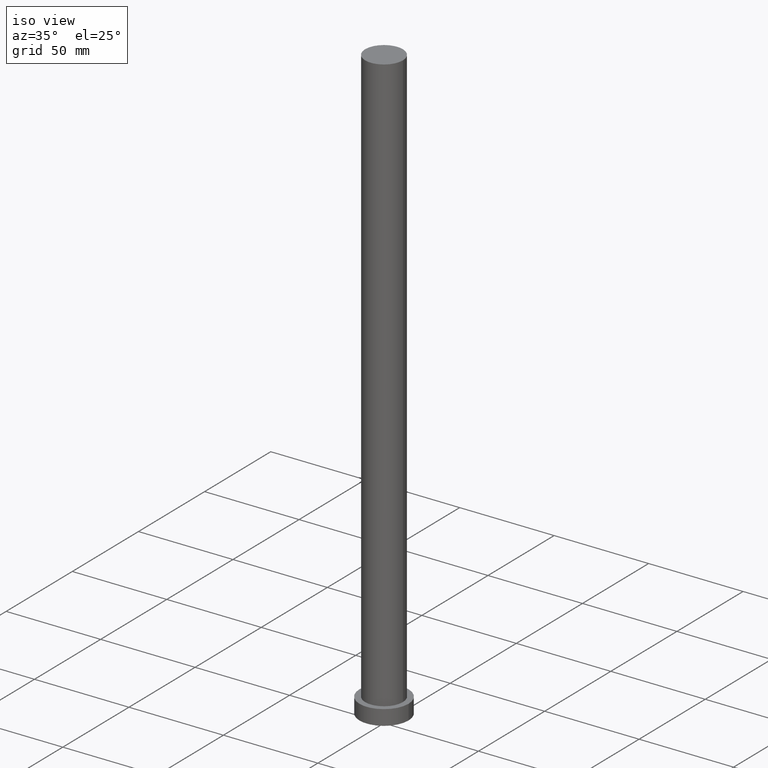
[diagram: clean part render]
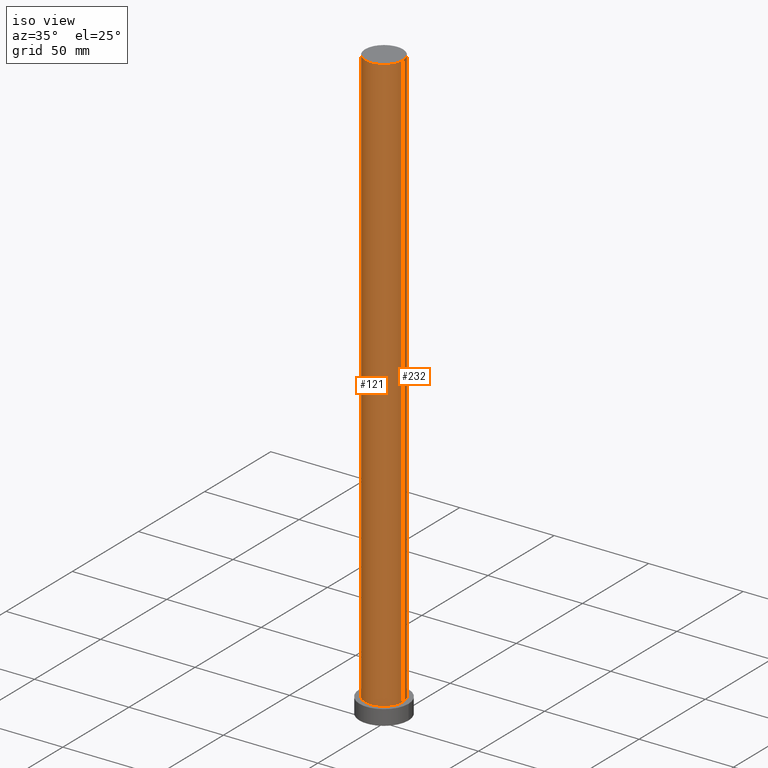
[diagram: same view with one multi-face feature highlighted, each face labeled with its STEP entity id]
A machine part, iso view. The highlighted faces form ONE feature: a constant-radius fillet chain: 2 tangent blend faces with common blend radius 10 mm. The faces share edges in the B-rep.
Their STEP definitions:
[1] entity #121 (Cylinder):
#8 = ORIENTED_EDGE ( 'NONE', *, *, #32, .F. ) ;
#12 = CARTESIAN_POINT ( 'NONE',  ( 10.00000000000000000, 1.224646799147353256E-15, 8.000000000000000000 ) ) ;
#13 = CARTESIAN_POINT ( 'NONE',  ( -10.00000000000000000, 0.000000000000000000, 8.000000000000000000 ) ) ;
#15 = DIRECTION ( 'NONE',  ( -0.000000000000000000, -0.000000000000000000, -1.000000000000000000 ) ) ;
#17 = CIRCLE ( 'NONE', #174, 10.00000000000000000 ) ;
#18 = CYLINDRICAL_SURFACE ( 'NONE', #88, 10.00000000000000000 ) ;
#21 = CARTESIAN_POINT ( 'NONE',  ( 0.000000000000000000, 0.000000000000000000, 8.000000000000000000 ) ) ;
#32 = EDGE_CURVE ( 'NONE', #42, #40, #17, .T. ) ;
#40 = VERTEX_POINT ( 'NONE', #148 ) ;
#42 = VERTEX_POINT ( 'NONE', #79 ) ;
#60 = CARTESIAN_POINT ( 'NONE',  ( 10.00000000000000000, 1.224646799147353256E-15, 315.0000000000000000 ) ) ;
#63 = ORIENTED_EDGE ( 'NONE', *, *, #151, .F. ) ;
#65 = DIRECTION ( 'NONE',  ( 0.000000000000000000, 0.000000000000000000, 1.000000000000000000 ) ) ;
#68 = EDGE_CURVE ( 'NONE', #227, #177, #220, .T. ) ;
#79 = CARTESIAN_POINT ( 'NONE',  ( -10.00000000000000000, 0.000000000000000000, 315.0000000000000000 ) ) ;
#88 = AXIS2_PLACEMENT_3D ( 'NONE', #137, #178, #154 ) ;
#94 = LINE ( 'NONE', #60, #197 ) ;
#95 = DIRECTION ( 'NONE',  ( 1.000000000000000000, 0.000000000000000000, 0.000000000000000000 ) ) ;
#108 = CARTESIAN_POINT ( 'NONE',  ( -10.00000000000000000, 0.000000000000000000, 315.0000000000000000 ) ) ;
#114 = DIRECTION ( 'NONE',  ( -0.000000000000000000, -0.000000000000000000, -1.000000000000000000 ) ) ;
#121 = ADVANCED_FACE ( 'NONE', ( #180 ), #18, .T. ) ;
#123 = VECTOR ( 'NONE', #15, 1000.000000000000000 ) ;
#137 = CARTESIAN_POINT ( 'NONE',  ( 0.000000000000000000, 0.000000000000000000, 315.0000000000000000 ) ) ;
#148 = CARTESIAN_POINT ( 'NONE',  ( 10.00000000000000000, 1.224646799147353256E-15, 315.0000000000000000 ) ) ;
#151 = EDGE_CURVE ( 'NONE', #40, #177, #94, .T. ) ;
#154 = DIRECTION ( 'NONE',  ( -1.000000000000000000, 0.000000000000000000, 0.000000000000000000 ) ) ;
#165 = CARTESIAN_POINT ( 'NONE',  ( 0.000000000000000000, 0.000000000000000000, 315.0000000000000000 ) ) ;
#174 = AXIS2_PLACEMENT_3D ( 'NONE', #165, #247, #188 ) ;
#177 = VERTEX_POINT ( 'NONE', #12 ) ;
#178 = DIRECTION ( 'NONE',  ( -0.000000000000000000, -0.000000000000000000, -1.000000000000000000 ) ) ;
#180 = FACE_OUTER_BOUND ( 'NONE', #209, .T. ) ;
#188 = DIRECTION ( 'NONE',  ( 1.000000000000000000, 0.000000000000000000, 0.000000000000000000 ) ) ;
#190 = EDGE_CURVE ( 'NONE', #42, #227, #194, .T. ) ;
#194 = LINE ( 'NONE', #108, #123 ) ;
#197 = VECTOR ( 'NONE', #114, 1000.000000000000000 ) ;
#202 = AXIS2_PLACEMENT_3D ( 'NONE', #21, #65, #95 ) ;
#209 = EDGE_LOOP ( 'NONE', ( #63, #8, #226, #251 ) ) ;
#220 = CIRCLE ( 'NONE', #202, 10.00000000000000000 ) ;
#226 = ORIENTED_EDGE ( 'NONE', *, *, #190, .T. ) ;
#227 = VERTEX_POINT ( 'NONE', #13 ) ;
#247 = DIRECTION ( 'NONE',  ( 0.000000000000000000, 0.000000000000000000, 1.000000000000000000 ) ) ;
#251 = ORIENTED_EDGE ( 'NONE', *, *, #68, .T. ) ;
[2] entity #232 (Cylinder):
#6 = AXIS2_PLACEMENT_3D ( 'NONE', #205, #218, #31 ) ;
#12 = CARTESIAN_POINT ( 'NONE',  ( 10.00000000000000000, 1.224646799147353256E-15, 8.000000000000000000 ) ) ;
#13 = CARTESIAN_POINT ( 'NONE',  ( -10.00000000000000000, 0.000000000000000000, 8.000000000000000000 ) ) ;
#15 = DIRECTION ( 'NONE',  ( -0.000000000000000000, -0.000000000000000000, -1.000000000000000000 ) ) ;
#31 = DIRECTION ( 'NONE',  ( 1.000000000000000000, 0.000000000000000000, 0.000000000000000000 ) ) ;
#40 = VERTEX_POINT ( 'NONE', #148 ) ;
#41 = DIRECTION ( 'NONE',  ( 0.000000000000000000, 0.000000000000000000, 1.000000000000000000 ) ) ;
#42 = VERTEX_POINT ( 'NONE', #79 ) ;
#44 = ORIENTED_EDGE ( 'NONE', *, *, #151, .T. ) ;
#50 = ORIENTED_EDGE ( 'NONE', *, *, #190, .F. ) ;
#52 = CARTESIAN_POINT ( 'NONE',  ( 0.000000000000000000, 0.000000000000000000, 315.0000000000000000 ) ) ;
#60 = CARTESIAN_POINT ( 'NONE',  ( 10.00000000000000000, 1.224646799147353256E-15, 315.0000000000000000 ) ) ;
#61 = DIRECTION ( 'NONE',  ( 1.000000000000000000, 0.000000000000000000, 0.000000000000000000 ) ) ;
#71 = DIRECTION ( 'NONE',  ( -1.000000000000000000, 0.000000000000000000, 0.000000000000000000 ) ) ;
#79 = CARTESIAN_POINT ( 'NONE',  ( -10.00000000000000000, 0.000000000000000000, 315.0000000000000000 ) ) ;
#89 = FACE_OUTER_BOUND ( 'NONE', #245, .T. ) ;
#94 = LINE ( 'NONE', #60, #197 ) ;
#108 = CARTESIAN_POINT ( 'NONE',  ( -10.00000000000000000, 0.000000000000000000, 315.0000000000000000 ) ) ;
#114 = DIRECTION ( 'NONE',  ( -0.000000000000000000, -0.000000000000000000, -1.000000000000000000 ) ) ;
#123 = VECTOR ( 'NONE', #15, 1000.000000000000000 ) ;
#142 = CIRCLE ( 'NONE', #173, 10.00000000000000000 ) ;
#148 = CARTESIAN_POINT ( 'NONE',  ( 10.00000000000000000, 1.224646799147353256E-15, 315.0000000000000000 ) ) ;
#151 = EDGE_CURVE ( 'NONE', #40, #177, #94, .T. ) ;
#158 = EDGE_CURVE ( 'NONE', #177, #227, #192, .T. ) ;
#171 = CYLINDRICAL_SURFACE ( 'NONE', #252, 10.00000000000000000 ) ;
#173 = AXIS2_PLACEMENT_3D ( 'NONE', #200, #41, #61 ) ;
#177 = VERTEX_POINT ( 'NONE', #12 ) ;
#190 = EDGE_CURVE ( 'NONE', #42, #227, #194, .T. ) ;
#192 = CIRCLE ( 'NONE', #6, 10.00000000000000000 ) ;
#194 = LINE ( 'NONE', #108, #123 ) ;
#197 = VECTOR ( 'NONE', #114, 1000.000000000000000 ) ;
#199 = DIRECTION ( 'NONE',  ( -0.000000000000000000, -0.000000000000000000, -1.000000000000000000 ) ) ;
#200 = CARTESIAN_POINT ( 'NONE',  ( 0.000000000000000000, 0.000000000000000000, 315.0000000000000000 ) ) ;
#205 = CARTESIAN_POINT ( 'NONE',  ( 0.000000000000000000, 0.000000000000000000, 8.000000000000000000 ) ) ;
#218 = DIRECTION ( 'NONE',  ( 0.000000000000000000, 0.000000000000000000, 1.000000000000000000 ) ) ;
#219 = ORIENTED_EDGE ( 'NONE', *, *, #158, .T. ) ;
#227 = VERTEX_POINT ( 'NONE', #13 ) ;
#232 = ADVANCED_FACE ( 'NONE', ( #89 ), #171, .T. ) ;
#242 = EDGE_CURVE ( 'NONE', #40, #42, #142, .T. ) ;
#245 = EDGE_LOOP ( 'NONE', ( #254, #44, #219, #50 ) ) ;
#252 = AXIS2_PLACEMENT_3D ( 'NONE', #52, #199, #71 ) ;
#254 = ORIENTED_EDGE ( 'NONE', *, *, #242, .F. ) ;